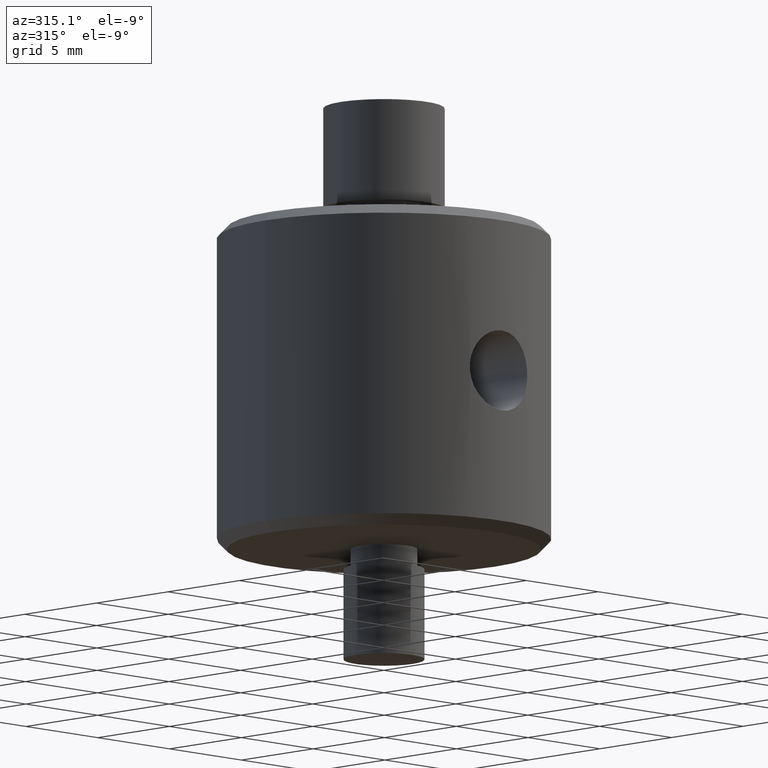
[diagram: clean part render]
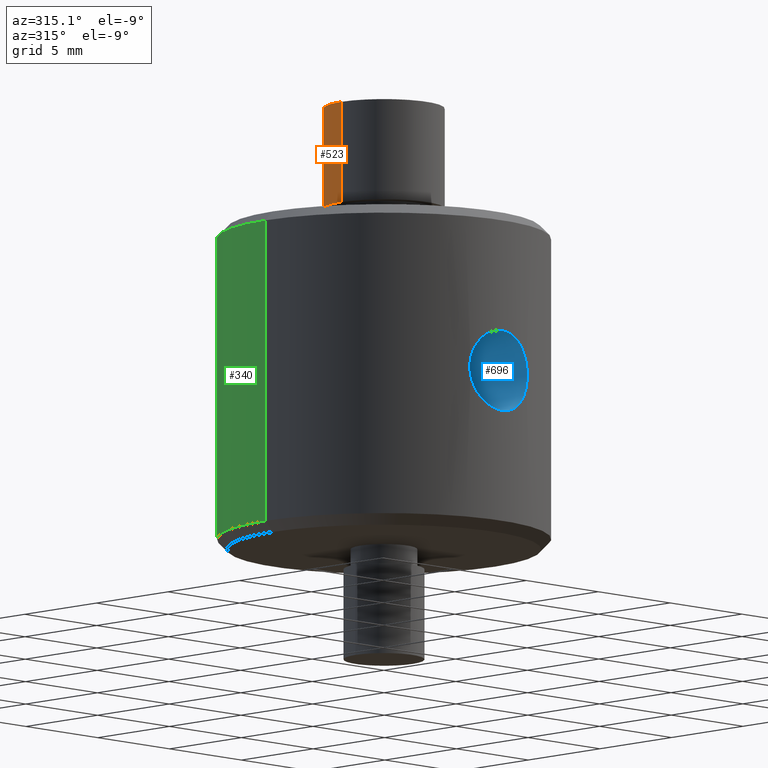
[diagram: same view with three faces highlighted in distinct colors, each labeled with its STEP entity id]
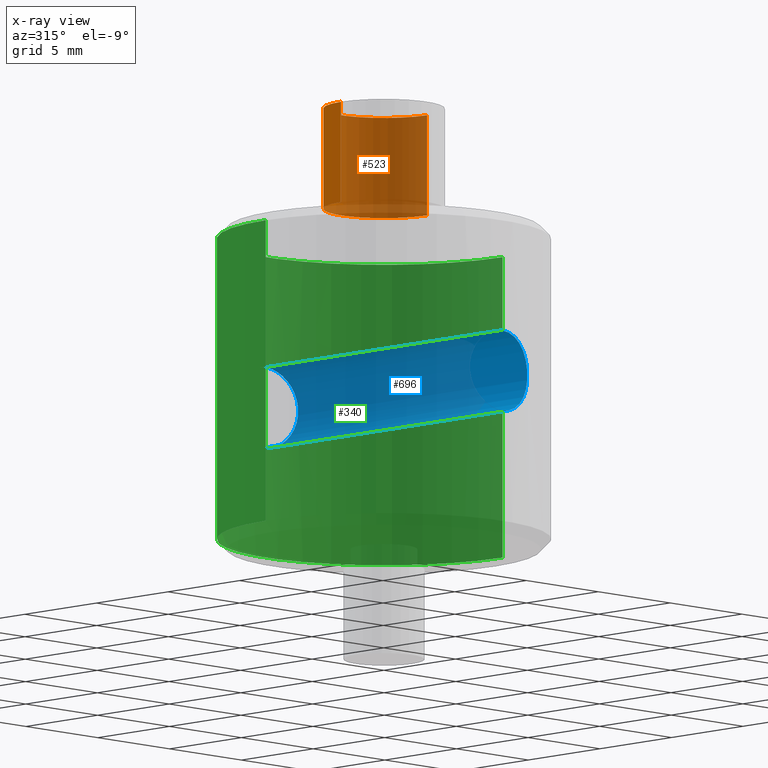
[diagram: x-ray of the same camera — body ghosted, the three highlighted faces saturated]
A machine part, auxiliary view with three faces highlighted in distinct colors.
The next image is the same camera in x-ray (body ghosted, the three faces saturated) — at least one of them is partly hidden behind the body in this view.
Their STEP definitions:

[orange] entity #523 — the highlighted cylindrical surface (partial cylindrical patch) has radius 3 mm, axis along (-0, -0, 1).
#3 = DIRECTION ( 'NONE',  ( -0.0000000000000000000, -0.0000000000000000000, 1.000000000000000000 ) ) ;
#9 = CARTESIAN_POINT ( 'NONE',  ( 0.0000000000000000000, 0.0000000000000000000, 8.000000000000000000 ) ) ;
#59 = CARTESIAN_POINT ( 'NONE',  ( -3.000000000000000400, 3.673940397442060400E-016, 8.000000000000000000 ) ) ;
#84 = ORIENTED_EDGE ( 'NONE', *, *, #305, .F. ) ;
#109 = VERTEX_POINT ( 'NONE', #356 ) ;
#129 = CIRCLE ( 'NONE', #714, 3.000000000000000400 ) ;
#180 = CARTESIAN_POINT ( 'NONE',  ( 3.000000000000000400, 0.0000000000000000000, 14.00000000000000000 ) ) ;
#205 = FACE_OUTER_BOUND ( 'NONE', #475, .T. ) ;
#261 = DIRECTION ( 'NONE',  ( -0.0000000000000000000, -0.0000000000000000000, 1.000000000000000000 ) ) ;
#305 = EDGE_CURVE ( 'NONE', #719, #593, #684, .T. ) ;
#307 = LINE ( 'NONE', #59, #763 ) ;
#320 = DIRECTION ( 'NONE',  ( -0.0000000000000000000, -0.0000000000000000000, -1.000000000000000000 ) ) ;
#351 = ORIENTED_EDGE ( 'NONE', *, *, #492, .F. ) ;
#356 = CARTESIAN_POINT ( 'NONE',  ( -3.000000000000000400, 3.673940397442060400E-016, 9.000000000000001800 ) ) ;
#366 = DIRECTION ( 'NONE',  ( -0.0000000000000000000, -0.0000000000000000000, 1.000000000000000000 ) ) ;
#372 = DIRECTION ( 'NONE',  ( 0.0000000000000000000, 0.0000000000000000000, 1.000000000000000000 ) ) ;
#404 = ORIENTED_EDGE ( 'NONE', *, *, #592, .F. ) ;
#441 = VECTOR ( 'NONE', #366, 1000.000000000000000 ) ;
#475 = EDGE_LOOP ( 'NONE', ( #404, #730, #84, #351 ) ) ;
#490 = DIRECTION ( 'NONE',  ( 1.000000000000000000, 0.0000000000000000000, 0.0000000000000000000 ) ) ;
#492 = EDGE_CURVE ( 'NONE', #569, #719, #757, .T. ) ;
#499 = CARTESIAN_POINT ( 'NONE',  ( 0.0000000000000000000, 0.0000000000000000000, 9.000000000000001800 ) ) ;
#508 = CARTESIAN_POINT ( 'NONE',  ( 3.000000000000000400, 0.0000000000000000000, 9.000000000000001800 ) ) ;
#523 = ADVANCED_FACE ( 'NONE', ( #205 ), #667, .T. ) ;
#525 = EDGE_CURVE ( 'NONE', #109, #593, #307, .T. ) ;
#564 = CARTESIAN_POINT ( 'NONE',  ( -3.000000000000000400, 3.673940397442060400E-016, 14.00000000000000000 ) ) ;
#569 = VERTEX_POINT ( 'NONE', #508 ) ;
#592 = EDGE_CURVE ( 'NONE', #109, #569, #129, .T. ) ;
#593 = VERTEX_POINT ( 'NONE', #564 ) ;
#610 = DIRECTION ( 'NONE',  ( 1.000000000000000000, 0.0000000000000000000, 0.0000000000000000000 ) ) ;
#615 = AXIS2_PLACEMENT_3D ( 'NONE', #9, #3, #490 ) ;
#662 = CARTESIAN_POINT ( 'NONE',  ( 3.000000000000000400, 0.0000000000000000000, 8.000000000000000000 ) ) ;
#667 = CYLINDRICAL_SURFACE ( 'NONE', #615, 3.000000000000000400 ) ;
#684 = CIRCLE ( 'NONE', #744, 3.000000000000000400 ) ;
#714 = AXIS2_PLACEMENT_3D ( 'NONE', #499, #320, #727 ) ;
#719 = VERTEX_POINT ( 'NONE', #180 ) ;
#723 = CARTESIAN_POINT ( 'NONE',  ( 0.0000000000000000000, 0.0000000000000000000, 14.00000000000000000 ) ) ;
#727 = DIRECTION ( 'NONE',  ( 1.000000000000000000, 0.0000000000000000000, 0.0000000000000000000 ) ) ;
#730 = ORIENTED_EDGE ( 'NONE', *, *, #525, .T. ) ;
#744 = AXIS2_PLACEMENT_3D ( 'NONE', #723, #372, #610 ) ;
#757 = LINE ( 'NONE', #662, #441 ) ;
#763 = VECTOR ( 'NONE', #261, 1000.000000000000000 ) ;

[blue] entity #696 — the highlighted cylindrical surface (partial cylindrical patch) has radius 2 mm, axis along (-0, 1, -0).
#8 = ORIENTED_EDGE ( 'NONE', *, *, #416, .T. ) ;
#21 = CARTESIAN_POINT ( 'NONE',  ( -6.789005360349728400E-017, 8.250000000000000000, 2.000000000000000000 ) ) ;
#28 = CARTESIAN_POINT ( 'NONE',  ( 1.986918607695745900, 8.007206264713762100, -0.2632750207901880000 ) ) ;
#35 = CARTESIAN_POINT ( 'NONE',  ( 1.897658194821841200, 8.028951604041024500, -0.6451074378026309100 ) ) ;
#40 = CARTESIAN_POINT ( 'NONE',  ( 1.936141588103510000, -8.019634998458533600, 0.5181599248321968600 ) ) ;
#44 = CARTESIAN_POINT ( 'NONE',  ( 1.009530896751481100, -8.191567199673246000, 1.746084158701253200 ) ) ;
#54 = EDGE_CURVE ( 'NONE', #457, #426, #160, .T. ) ;
#56 = CARTESIAN_POINT ( 'NONE',  ( 0.0000000000000000000, -10.00000000000000000, 0.0000000000000000000 ) ) ;
#74 = CARTESIAN_POINT ( 'NONE',  ( 0.1326415266041785500, -8.250000000000000000, 1.999999999999999600 ) ) ;
#78 = CARTESIAN_POINT ( 'NONE',  ( 0.5193570997923324700, 8.234635984631101000, 1.935806336850731900 ) ) ;
#81 = CARTESIAN_POINT ( 'NONE',  ( 1.321366810000156500, -8.144031804710421000, -1.506980075174842300 ) ) ;
#83 = CARTESIAN_POINT ( 'NONE',  ( 0.8873435543799543800, 8.203037833527066200, -1.797140462901066500 ) ) ;
#88 = ORIENTED_EDGE ( 'NONE', *, *, #708, .F. ) ;
#103 = DIRECTION ( 'NONE',  ( -0.0000000000000000000, 1.000000000000000000, -0.0000000000000000000 ) ) ;
#140 = CARTESIAN_POINT ( 'NONE',  ( 1.505833281658624000, -8.111949852566528600, -1.322673550575946600 ) ) ;
#151 = CARTESIAN_POINT ( 'NONE',  ( 1.599357376057809300, 8.095676499416024200, -1.229142779217262900 ) ) ;
#152 = CARTESIAN_POINT ( 'NONE',  ( 1.746564404702779300, 8.063665092118787600, -1.009254032915539300 ) ) ;
#160 = B_SPLINE_CURVE_WITH_KNOTS ( 'NONE', 3,
 ( #567, #571, #385, #163, #522, #203, #81, #140, #562, #281, #259, #330, #629, #342, #628, #40, #754, #398, #268, #264, #44, #735, #742, #200, #74, #502 ),
 .UNSPECIFIED., .F., .F.,
 ( 4, 2, 2, 2, 2, 2, 2, 2, 2, 2, 2, 2, 4 ),
 ( 0.006276366173216329500, 0.007060701512947540300, 0.007452869182813145700, 0.007845036852678751900, 0.008237204522544356400, 0.008629372192409962700, 0.009413707532141171700, 0.009805875202006778000, 0.01019804287187238200, 0.01098237821160359300, 0.01176671355133480600, 0.01215888122120041000, 0.01255104889106601500 ),
 .UNSPECIFIED. ) ;
#163 = CARTESIAN_POINT ( 'NONE',  ( 0.8869395704203337800, -8.203076758833363500, -1.797314436934732900 ) ) ;
#200 = CARTESIAN_POINT ( 'NONE',  ( 0.2633971679137698800, -8.246803913401407700, 1.986932804278705100 ) ) ;
#203 = CARTESIAN_POINT ( 'NONE',  ( 1.221030223150371400, -8.159876887627760300, -1.589387696022922700 ) ) ;
#207 = CARTESIAN_POINT ( 'NONE',  ( 1.004520203861529100, 8.189343423344858800, -1.734320818487681500 ) ) ;
#212 = CARTESIAN_POINT ( 'NONE',  ( 0.2635999258944435300, 8.246795264675656200, -1.986896621537046000 ) ) ;
#259 = CARTESIAN_POINT ( 'NONE',  ( 1.796101587691693500, -8.052279829401907600, -0.8895820937560504600 ) ) ;
#264 = CARTESIAN_POINT ( 'NONE',  ( 1.231581452474026900, -8.159680445255538900, 1.597060228483784700 ) ) ;
#268 = CARTESIAN_POINT ( 'NONE',  ( 1.598501874800889500, -8.095799503385800100, 1.229709723365947300 ) ) ;
#269 = CARTESIAN_POINT ( 'NONE',  ( 0.5211225312989512500, 8.234533888799106200, -1.935374489079428200 ) ) ;
#278 = VERTEX_POINT ( 'NONE', #606 ) ;
#279 = CARTESIAN_POINT ( 'NONE',  ( 2.449308039802920400E-016, -8.250000000000000000, -2.000000000000000000 ) ) ;
#281 = CARTESIAN_POINT ( 'NONE',  ( 1.734485429178346700, -8.065947410585693000, -1.004220271036169600 ) ) ;
#309 = VERTEX_POINT ( 'NONE', #375 ) ;
#330 = CARTESIAN_POINT ( 'NONE',  ( 1.947787641228585300, -8.017442781952535600, -0.5248544217563377900 ) ) ;
#333 = CARTESIAN_POINT ( 'NONE',  ( 2.449279156765281000E-016, 8.250000000000000000, -2.000000000000000000 ) ) ;
#335 = CARTESIAN_POINT ( 'NONE',  ( 1.747129177818576000, 8.063531605375777300, 1.007640096485658400 ) ) ;
#342 = CARTESIAN_POINT ( 'NONE',  ( 2.000045191572576500, -8.003894004411135300, 0.1312489192629629500 ) ) ;
#348 = DIRECTION ( 'NONE',  ( -0.0000000000000000000, 1.000000000000000000, -0.0000000000000000000 ) ) ;
#375 = CARTESIAN_POINT ( 'NONE',  ( -6.789005360349728400E-017, 8.250000000000000000, 2.000000000000000000 ) ) ;
#385 = CARTESIAN_POINT ( 'NONE',  ( 0.5256441293576987700, -8.236790558271446000, -1.947229364106093600 ) ) ;
#386 = CARTESIAN_POINT ( 'NONE',  ( 1.598332908652791100, 8.095838505945714300, 1.229985968183118200 ) ) ;
#390 = CARTESIAN_POINT ( 'NONE',  ( 1.987145896334996400, 8.007150238837752500, 0.2619363400058078400 ) ) ;
#391 = CARTESIAN_POINT ( 'NONE',  ( 1.999945528447225200, 8.003918908033524500, 0.1318261355252158300 ) ) ;
#398 = CARTESIAN_POINT ( 'NONE',  ( 1.747216188800824900, -8.063515664767722400, 1.007704811256960700 ) ) ;
#416 = EDGE_CURVE ( 'NONE', #426, #309, #717, .T. ) ;
#424 = EDGE_LOOP ( 'NONE', ( #88, #550, #8, #432 ) ) ;
#426 = VERTEX_POINT ( 'NONE', #682 ) ;
#432 = ORIENTED_EDGE ( 'NONE', *, *, #636, .T. ) ;
#434 = CARTESIAN_POINT ( 'NONE',  ( 0.1326771134377834100, 8.250000000000000000, 2.000000000000000000 ) ) ;
#445 = DIRECTION ( 'NONE',  ( -0.0000000000000000000, 1.000000000000000000, -0.0000000000000000000 ) ) ;
#446 = CARTESIAN_POINT ( 'NONE',  ( 1.935604370650708500, 8.019765173594350900, -0.5201874762982557900 ) ) ;
#450 = CARTESIAN_POINT ( 'NONE',  ( 0.0000000000000000000, -10.00000000000000000, 2.000000000000000000 ) ) ;
#453 = CARTESIAN_POINT ( 'NONE',  ( 1.322777905114126900, 8.143798310005646400, 1.505703159970232600 ) ) ;
#457 = VERTEX_POINT ( 'NONE', #279 ) ;
#458 = CARTESIAN_POINT ( 'NONE',  ( 2.000054127914221900, 8.003891771416318700, -0.1301680920073833000 ) ) ;
#469 = CARTESIAN_POINT ( 'NONE',  ( 2.449293598294706400E-016, -10.00000000000000000, -2.000000000000000000 ) ) ;
#483 = B_SPLINE_CURVE_WITH_KNOTS ( 'NONE', 3,
 ( #21, #434, #743, #78, #745, #690, #510, #685, #453, #386, #335, #739, #749, #390, #391, #458, #28, #446, #35, #152, #151, #631, #575, #207, #83, #513, #269, #212, #689, #333 ),
 .UNSPECIFIED., .F., .F.,
 ( 4, 2, 2, 2, 2, 2, 2, 2, 2, 2, 2, 2, 2, 2, 4 ),
 ( 6.593988636400875700E-020, 0.0003922728858260206500, 0.0007845457716520413000, 0.001176818657478061800, 0.001569091543304082400, 0.002353637314956123700, 0.002745910200782144200, 0.003138183086608164800, 0.003530455972434185300, 0.003922728858260206300, 0.004707274629912247400, 0.005099547515738267500, 0.005491820401564288500, 0.005884093287390308600, 0.006276366173216329500 ),
 .UNSPECIFIED. ) ;
#493 = VECTOR ( 'NONE', #103, 1000.000000000000000 ) ;
#502 = CARTESIAN_POINT ( 'NONE',  ( 6.789005360349728400E-017, -8.250000000000000000, 2.000000000000000000 ) ) ;
#503 = FACE_OUTER_BOUND ( 'NONE', #424, .T. ) ;
#510 = CARTESIAN_POINT ( 'NONE',  ( 1.003367067051843800, 8.189490218781173800, 1.735021821357147600 ) ) ;
#513 = CARTESIAN_POINT ( 'NONE',  ( 0.6458375426091315100, 8.225576098385614500, -1.897362984632226000 ) ) ;
#522 = CARTESIAN_POINT ( 'NONE',  ( 1.003891274059350200, -8.189426593904842700, -1.734724866940920800 ) ) ;
#549 = VECTOR ( 'NONE', #445, 1000.000000000000000 ) ;
#550 = ORIENTED_EDGE ( 'NONE', *, *, #54, .T. ) ;
#562 = CARTESIAN_POINT ( 'NONE',  ( 1.589900384508794200, -8.095687994340249100, -1.220292925543182900 ) ) ;
#567 = CARTESIAN_POINT ( 'NONE',  ( 2.449308039802920400E-016, -8.250000000000000000, -2.000000000000000000 ) ) ;
#571 = CARTESIAN_POINT ( 'NONE',  ( 0.2615629039225235700, -8.250000000000000000, -2.000000000000000400 ) ) ;
#575 = CARTESIAN_POINT ( 'NONE',  ( 1.220760633113353400, 8.159911152830549200, -1.589551200196607200 ) ) ;
#589 = DIRECTION ( 'NONE',  ( 0.0000000000000000000, 0.0000000000000000000, 1.000000000000000000 ) ) ;
#606 = CARTESIAN_POINT ( 'NONE',  ( 2.449279156765281000E-016, 8.250000000000000000, -2.000000000000000000 ) ) ;
#628 = CARTESIAN_POINT ( 'NONE',  ( 1.987161606794385400, -8.007145465530605600, 0.2613861231367247700 ) ) ;
#629 = CARTESIAN_POINT ( 'NONE',  ( 1.999909263040937000, -8.003927969961225100, -0.2645583643814337600 ) ) ;
#631 = CARTESIAN_POINT ( 'NONE',  ( 1.321223466088915300, 8.144060661153183400, -1.507167060968729300 ) ) ;
#636 = EDGE_CURVE ( 'NONE', #309, #278, #483, .T. ) ;
#649 = LINE ( 'NONE', #469, #493 ) ;
#682 = CARTESIAN_POINT ( 'NONE',  ( 6.789005360349728400E-017, -8.250000000000000000, 2.000000000000000000 ) ) ;
#685 = CARTESIAN_POINT ( 'NONE',  ( 1.220416603986454100, 8.159968065346266300, 1.589852038569584200 ) ) ;
#689 = CARTESIAN_POINT ( 'NONE',  ( 0.1308165397492921700, 8.250000000000001800, -2.000000000000000900 ) ) ;
#690 = CARTESIAN_POINT ( 'NONE',  ( 0.8886708092414188400, 8.202897855306337900, 1.796506368153792900 ) ) ;
#691 = AXIS2_PLACEMENT_3D ( 'NONE', #56, #348, #589 ) ;
#696 = ADVANCED_FACE ( 'NONE', ( #503 ), #716, .F. ) ;
#708 = EDGE_CURVE ( 'NONE', #457, #278, #649, .T. ) ;
#716 = CYLINDRICAL_SURFACE ( 'NONE', #691, 2.000000000000000000 ) ;
#717 = LINE ( 'NONE', #450, #549 ) ;
#735 = CARTESIAN_POINT ( 'NONE',  ( 0.6485373955294846400, -8.225357481663911200, 1.896415006476869200 ) ) ;
#739 = CARTESIAN_POINT ( 'NONE',  ( 1.896948438408481600, 8.029116526787948500, 0.6469438569360429500 ) ) ;
#742 = CARTESIAN_POINT ( 'NONE',  ( 0.5211970916093433500, -8.234531343425429000, 1.935363952460052600 ) ) ;
#743 = CARTESIAN_POINT ( 'NONE',  ( 0.2630402404011860700, 8.246803709826968600, 1.986929239511523200 ) ) ;
#745 = CARTESIAN_POINT ( 'NONE',  ( 0.6466695324974537400, 8.225514424492038400, 1.897100275092082700 ) ) ;
#749 = CARTESIAN_POINT ( 'NONE',  ( 1.935610163547384600, 8.019764152106503700, 0.5203582941673174900 ) ) ;
#754 = CARTESIAN_POINT ( 'NONE',  ( 1.897368781442408500, -8.029017936759030900, 0.6457941285481596500 ) ) ;

[green] entity #340 — the highlighted cylindrical surface (partial cylindrical patch) has radius 8.25 mm, axis along (0, 0, 1).
#5 = EDGE_CURVE ( 'NONE', #43, #248, #379, .T. ) ;
#11 = CARTESIAN_POINT ( 'NONE',  ( -2.000045191572576500, 8.003894004411135300, 0.1312489192629629500 ) ) ;
#21 = CARTESIAN_POINT ( 'NONE',  ( -6.789005360349728400E-017, 8.250000000000000000, 2.000000000000000000 ) ) ;
#28 = CARTESIAN_POINT ( 'NONE',  ( 1.986918607695745900, 8.007206264713762100, -0.2632750207901880000 ) ) ;
#35 = CARTESIAN_POINT ( 'NONE',  ( 1.897658194821841200, 8.028951604041024500, -0.6451074378026309100 ) ) ;
#43 = VERTEX_POINT ( 'NONE', #145 ) ;
#46 = CARTESIAN_POINT ( 'NONE',  ( 8.250000000000000000, 0.0000000000000000000, -7.499999999999996400 ) ) ;
#52 = DIRECTION ( 'NONE',  ( -0.0000000000000000000, -0.0000000000000000000, 1.000000000000000000 ) ) ;
#57 = CARTESIAN_POINT ( 'NONE',  ( -1.505833281658624000, 8.111949852566528600, -1.322673550575946600 ) ) ;
#61 = CARTESIAN_POINT ( 'NONE',  ( -1.734485429178346700, 8.065947410585693000, -1.004220271036169600 ) ) ;
#65 = CYLINDRICAL_SURFACE ( 'NONE', #396, 8.250000000000000000 ) ;
#68 = CARTESIAN_POINT ( 'NONE',  ( -0.2633971679137698800, 8.246803913401407700, 1.986932804278705100 ) ) ;
#78 = CARTESIAN_POINT ( 'NONE',  ( 0.5193570997923324700, 8.234635984631101000, 1.935806336850731900 ) ) ;
#79 = DIRECTION ( 'NONE',  ( 1.000000000000000000, 0.0000000000000000000, 0.0000000000000000000 ) ) ;
#80 = FACE_BOUND ( 'NONE', #326, .T. ) ;
#83 = CARTESIAN_POINT ( 'NONE',  ( 0.8873435543799543800, 8.203037833527066200, -1.797140462901066500 ) ) ;
#98 = FACE_OUTER_BOUND ( 'NONE', #133, .T. ) ;
#100 = VERTEX_POINT ( 'NONE', #534 ) ;
#101 = ORIENTED_EDGE ( 'NONE', *, *, #501, .F. ) ;
#108 = CARTESIAN_POINT ( 'NONE',  ( -0.8869395704203337800, 8.203076758833363500, -1.797314436934732900 ) ) ;
#114 = CARTESIAN_POINT ( 'NONE',  ( -1.987161606794385400, 8.007145465530605600, 0.2613861231367247700 ) ) ;
#122 = ORIENTED_EDGE ( 'NONE', *, *, #271, .F. ) ;
#123 = DIRECTION ( 'NONE',  ( 0.0000000000000000000, 0.0000000000000000000, 1.000000000000000000 ) ) ;
#127 = CARTESIAN_POINT ( 'NONE',  ( -6.789005360349728400E-017, 8.250000000000000000, 2.000000000000000000 ) ) ;
#133 = EDGE_LOOP ( 'NONE', ( #741, #341, #143, #101 ) ) ;
#136 = CARTESIAN_POINT ( 'NONE',  ( -0.6485373955294846400, 8.225357481663911200, 1.896415006476869200 ) ) ;
#143 = ORIENTED_EDGE ( 'NONE', *, *, #380, .T. ) ;
#145 = CARTESIAN_POINT ( 'NONE',  ( -8.250000000000000000, 1.010333609296566500E-015, -7.499999999999996400 ) ) ;
#151 = CARTESIAN_POINT ( 'NONE',  ( 1.599357376057809300, 8.095676499416024200, -1.229142779217262900 ) ) ;
#152 = CARTESIAN_POINT ( 'NONE',  ( 1.746564404702779300, 8.063665092118787600, -1.009254032915539300 ) ) ;
#176 = VERTEX_POINT ( 'NONE', #46 ) ;
#182 = CARTESIAN_POINT ( 'NONE',  ( -1.897368781442408500, 8.029017936759030900, 0.6457941285481596500 ) ) ;
#185 = CARTESIAN_POINT ( 'NONE',  ( -0.2615629039225235700, 8.250000000000000000, -2.000000000000000400 ) ) ;
#198 = DIRECTION ( 'NONE',  ( -0.0000000000000000000, -0.0000000000000000000, -1.000000000000000000 ) ) ;
#207 = CARTESIAN_POINT ( 'NONE',  ( 1.004520203861529100, 8.189343423344858800, -1.734320818487681500 ) ) ;
#212 = CARTESIAN_POINT ( 'NONE',  ( 0.2635999258944435300, 8.246795264675656200, -1.986896621537046000 ) ) ;
#229 = CARTESIAN_POINT ( 'NONE',  ( -8.250000000000000000, 1.010333609296566500E-015, 7.499999999999998200 ) ) ;
#241 = CARTESIAN_POINT ( 'NONE',  ( -1.231581452474026900, 8.159680445255538900, 1.597060228483784700 ) ) ;
#248 = VERTEX_POINT ( 'NONE', #229 ) ;
#250 = DIRECTION ( 'NONE',  ( 0.0000000000000000000, 0.0000000000000000000, 1.000000000000000000 ) ) ;
#269 = CARTESIAN_POINT ( 'NONE',  ( 0.5211225312989512500, 8.234533888799106200, -1.935374489079428200 ) ) ;
#271 = EDGE_CURVE ( 'NONE', #278, #309, #316, .T. ) ;
#278 = VERTEX_POINT ( 'NONE', #606 ) ;
#286 = LINE ( 'NONE', #364, #740 ) ;
#309 = VERTEX_POINT ( 'NONE', #375 ) ;
#311 = CARTESIAN_POINT ( 'NONE',  ( -1.947787641228585300, 8.017442781952535600, -0.5248544217563377900 ) ) ;
#316 = B_SPLINE_CURVE_WITH_KNOTS ( 'NONE', 3,
 ( #713, #185, #362, #108, #656, #415, #658, #57, #418, #61, #480, #311, #365, #11, #114, #542, #182, #420, #599, #241, #423, #136, #552, #68, #732, #127 ),
 .UNSPECIFIED., .F., .F.,
 ( 4, 2, 2, 2, 2, 2, 2, 2, 2, 2, 2, 2, 4 ),
 ( 0.006276366173216329500, 0.007060701512947540300, 0.007452869182813145700, 0.007845036852678751900, 0.008237204522544356400, 0.008629372192409962700, 0.009413707532141171700, 0.009805875202006778000, 0.01019804287187238200, 0.01098237821160359300, 0.01176671355133480600, 0.01215888122120041000, 0.01255104889106601500 ),
 .UNSPECIFIED. ) ;
#319 = ORIENTED_EDGE ( 'NONE', *, *, #636, .F. ) ;
#326 = EDGE_LOOP ( 'NONE', ( #319, #122 ) ) ;
#333 = CARTESIAN_POINT ( 'NONE',  ( 2.449279156765281000E-016, 8.250000000000000000, -2.000000000000000000 ) ) ;
#335 = CARTESIAN_POINT ( 'NONE',  ( 1.747129177818576000, 8.063531605375777300, 1.007640096485658400 ) ) ;
#340 = ADVANCED_FACE ( 'NONE', ( #80, #98 ), #65, .T. ) ;
#341 = ORIENTED_EDGE ( 'NONE', *, *, #5, .T. ) ;
#362 = CARTESIAN_POINT ( 'NONE',  ( -0.5256441293576987700, 8.236790558271446000, -1.947229364106093600 ) ) ;
#364 = CARTESIAN_POINT ( 'NONE',  ( 8.250000000000000000, 0.0000000000000000000, -13.50000000000000000 ) ) ;
#365 = CARTESIAN_POINT ( 'NONE',  ( -1.999909263040937000, 8.003927969961225100, -0.2645583643814337600 ) ) ;
#375 = CARTESIAN_POINT ( 'NONE',  ( -6.789005360349728400E-017, 8.250000000000000000, 2.000000000000000000 ) ) ;
#379 = LINE ( 'NONE', #429, #578 ) ;
#380 = EDGE_CURVE ( 'NONE', #248, #100, #430, .T. ) ;
#386 = CARTESIAN_POINT ( 'NONE',  ( 1.598332908652791100, 8.095838505945714300, 1.229985968183118200 ) ) ;
#390 = CARTESIAN_POINT ( 'NONE',  ( 1.987145896334996400, 8.007150238837752500, 0.2619363400058078400 ) ) ;
#391 = CARTESIAN_POINT ( 'NONE',  ( 1.999945528447225200, 8.003918908033524500, 0.1318261355252158300 ) ) ;
#396 = AXIS2_PLACEMENT_3D ( 'NONE', #672, #617, #671 ) ;
#410 = CARTESIAN_POINT ( 'NONE',  ( 0.0000000000000000000, 0.0000000000000000000, -7.499999999999996400 ) ) ;
#415 = CARTESIAN_POINT ( 'NONE',  ( -1.221030223150371400, 8.159876887627760300, -1.589387696022922700 ) ) ;
#418 = CARTESIAN_POINT ( 'NONE',  ( -1.589900384508794200, 8.095687994340249100, -1.220292925543182900 ) ) ;
#420 = CARTESIAN_POINT ( 'NONE',  ( -1.747216188800824900, 8.063515664767722400, 1.007704811256960700 ) ) ;
#423 = CARTESIAN_POINT ( 'NONE',  ( -1.009530896751481100, 8.191567199673246000, 1.746084158701253200 ) ) ;
#429 = CARTESIAN_POINT ( 'NONE',  ( -8.250000000000000000, 1.010333609296566500E-015, -13.50000000000000000 ) ) ;
#430 = CIRCLE ( 'NONE', #455, 8.250000000000000000 ) ;
#434 = CARTESIAN_POINT ( 'NONE',  ( 0.1326771134377834100, 8.250000000000000000, 2.000000000000000000 ) ) ;
#446 = CARTESIAN_POINT ( 'NONE',  ( 1.935604370650708500, 8.019765173594350900, -0.5201874762982557900 ) ) ;
#453 = CARTESIAN_POINT ( 'NONE',  ( 1.322777905114126900, 8.143798310005646400, 1.505703159970232600 ) ) ;
#455 = AXIS2_PLACEMENT_3D ( 'NONE', #620, #198, #79 ) ;
#458 = CARTESIAN_POINT ( 'NONE',  ( 2.000054127914221900, 8.003891771416318700, -0.1301680920073833000 ) ) ;
#471 = CIRCLE ( 'NONE', #535, 8.250000000000000000 ) ;
#480 = CARTESIAN_POINT ( 'NONE',  ( -1.796101587691693500, 8.052279829401907600, -0.8895820937560504600 ) ) ;
#483 = B_SPLINE_CURVE_WITH_KNOTS ( 'NONE', 3,
 ( #21, #434, #743, #78, #745, #690, #510, #685, #453, #386, #335, #739, #749, #390, #391, #458, #28, #446, #35, #152, #151, #631, #575, #207, #83, #513, #269, #212, #689, #333 ),
 .UNSPECIFIED., .F., .F.,
 ( 4, 2, 2, 2, 2, 2, 2, 2, 2, 2, 2, 2, 2, 2, 4 ),
 ( 6.593988636400875700E-020, 0.0003922728858260206500, 0.0007845457716520413000, 0.001176818657478061800, 0.001569091543304082400, 0.002353637314956123700, 0.002745910200782144200, 0.003138183086608164800, 0.003530455972434185300, 0.003922728858260206300, 0.004707274629912247400, 0.005099547515738267500, 0.005491820401564288500, 0.005884093287390308600, 0.006276366173216329500 ),
 .UNSPECIFIED. ) ;
#501 = EDGE_CURVE ( 'NONE', #176, #100, #286, .T. ) ;
#510 = CARTESIAN_POINT ( 'NONE',  ( 1.003367067051843800, 8.189490218781173800, 1.735021821357147600 ) ) ;
#513 = CARTESIAN_POINT ( 'NONE',  ( 0.6458375426091315100, 8.225576098385614500, -1.897362984632226000 ) ) ;
#534 = CARTESIAN_POINT ( 'NONE',  ( 8.250000000000000000, 0.0000000000000000000, 7.499999999999998200 ) ) ;
#535 = AXIS2_PLACEMENT_3D ( 'NONE', #410, #52, #591 ) ;
#542 = CARTESIAN_POINT ( 'NONE',  ( -1.936141588103510000, 8.019634998458533600, 0.5181599248321968600 ) ) ;
#552 = CARTESIAN_POINT ( 'NONE',  ( -0.5211970916093433500, 8.234531343425429000, 1.935363952460052600 ) ) ;
#575 = CARTESIAN_POINT ( 'NONE',  ( 1.220760633113353400, 8.159911152830549200, -1.589551200196607200 ) ) ;
#578 = VECTOR ( 'NONE', #123, 1000.000000000000000 ) ;
#591 = DIRECTION ( 'NONE',  ( -1.000000000000000000, 0.0000000000000000000, 0.0000000000000000000 ) ) ;
#599 = CARTESIAN_POINT ( 'NONE',  ( -1.598501874800889500, 8.095799503385800100, 1.229709723365947300 ) ) ;
#606 = CARTESIAN_POINT ( 'NONE',  ( 2.449279156765281000E-016, 8.250000000000000000, -2.000000000000000000 ) ) ;
#617 = DIRECTION ( 'NONE',  ( 0.0000000000000000000, 0.0000000000000000000, 1.000000000000000000 ) ) ;
#620 = CARTESIAN_POINT ( 'NONE',  ( 0.0000000000000000000, 0.0000000000000000000, 7.499999999999998200 ) ) ;
#631 = CARTESIAN_POINT ( 'NONE',  ( 1.321223466088915300, 8.144060661153183400, -1.507167060968729300 ) ) ;
#636 = EDGE_CURVE ( 'NONE', #309, #278, #483, .T. ) ;
#656 = CARTESIAN_POINT ( 'NONE',  ( -1.003891274059350200, 8.189426593904842700, -1.734724866940920800 ) ) ;
#658 = CARTESIAN_POINT ( 'NONE',  ( -1.321366810000156500, 8.144031804710421000, -1.506980075174842300 ) ) ;
#661 = EDGE_CURVE ( 'NONE', #176, #43, #471, .T. ) ;
#671 = DIRECTION ( 'NONE',  ( 1.000000000000000000, 0.0000000000000000000, 0.0000000000000000000 ) ) ;
#672 = CARTESIAN_POINT ( 'NONE',  ( 0.0000000000000000000, 0.0000000000000000000, -13.50000000000000000 ) ) ;
#685 = CARTESIAN_POINT ( 'NONE',  ( 1.220416603986454100, 8.159968065346266300, 1.589852038569584200 ) ) ;
#689 = CARTESIAN_POINT ( 'NONE',  ( 0.1308165397492921700, 8.250000000000001800, -2.000000000000000900 ) ) ;
#690 = CARTESIAN_POINT ( 'NONE',  ( 0.8886708092414188400, 8.202897855306337900, 1.796506368153792900 ) ) ;
#713 = CARTESIAN_POINT ( 'NONE',  ( 2.449279156765281000E-016, 8.250000000000000000, -2.000000000000000000 ) ) ;
#732 = CARTESIAN_POINT ( 'NONE',  ( -0.1326415266041785500, 8.250000000000000000, 1.999999999999999600 ) ) ;
#739 = CARTESIAN_POINT ( 'NONE',  ( 1.896948438408481600, 8.029116526787948500, 0.6469438569360429500 ) ) ;
#740 = VECTOR ( 'NONE', #250, 1000.000000000000000 ) ;
#741 = ORIENTED_EDGE ( 'NONE', *, *, #661, .T. ) ;
#743 = CARTESIAN_POINT ( 'NONE',  ( 0.2630402404011860700, 8.246803709826968600, 1.986929239511523200 ) ) ;
#745 = CARTESIAN_POINT ( 'NONE',  ( 0.6466695324974537400, 8.225514424492038400, 1.897100275092082700 ) ) ;
#749 = CARTESIAN_POINT ( 'NONE',  ( 1.935610163547384600, 8.019764152106503700, 0.5203582941673174900 ) ) ;